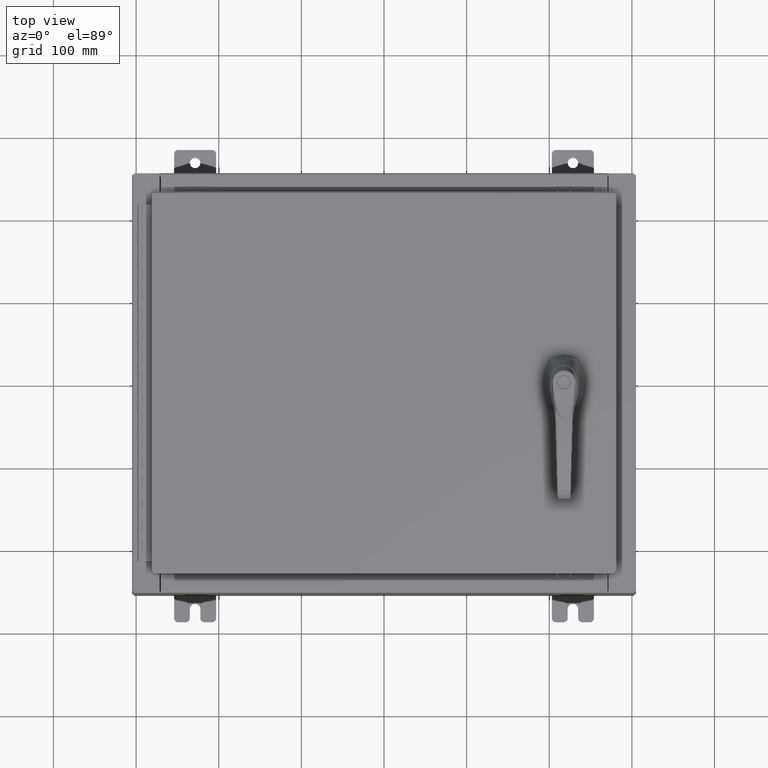
[diagram: clean part render]
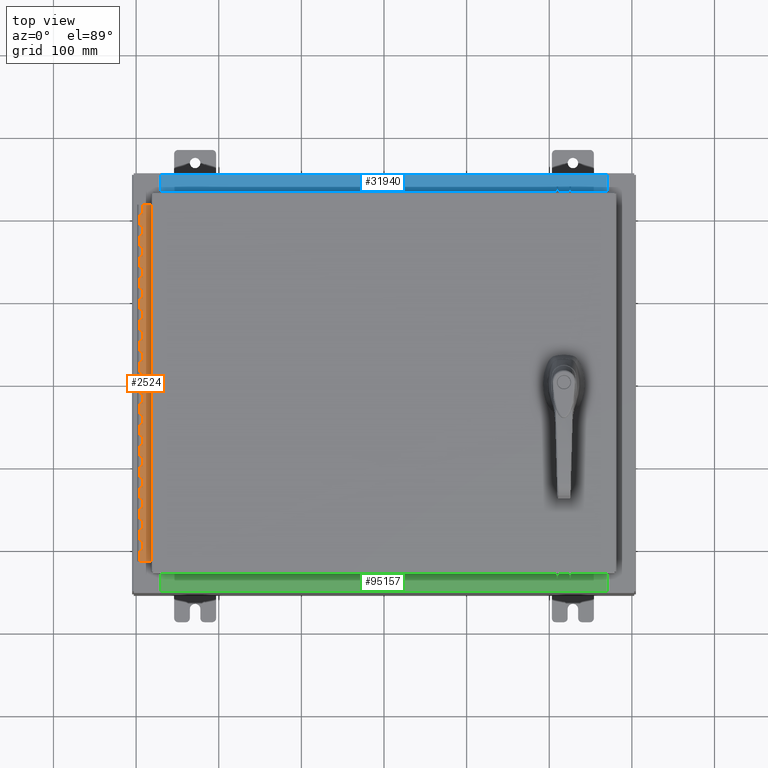
[diagram: same view with three faces highlighted in distinct colors, each labeled with its STEP entity id]
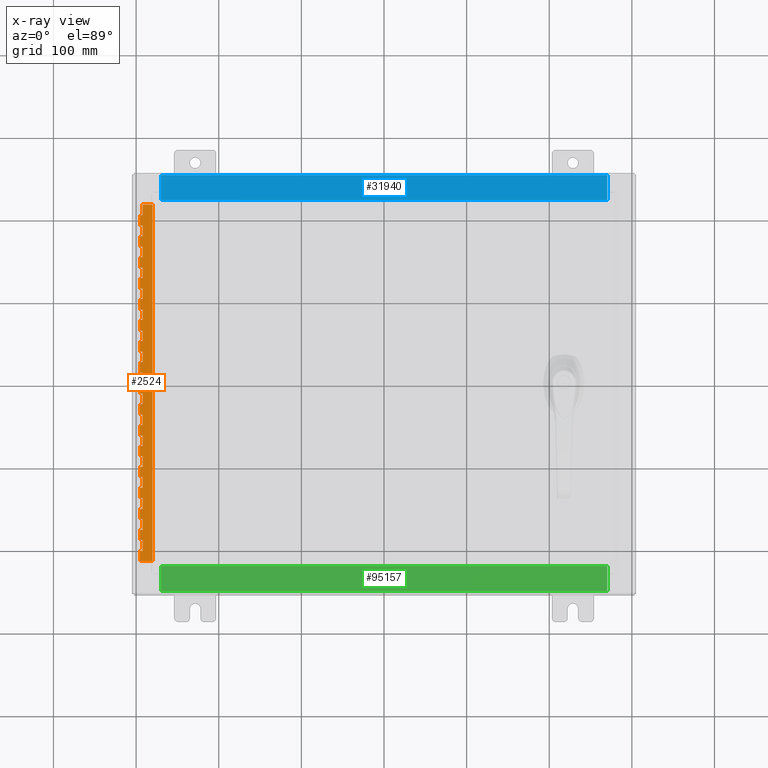
[diagram: x-ray of the same camera — body ghosted, the three highlighted faces saturated]
A machine part, top view with three faces highlighted in distinct colors.
The next image is the same camera in x-ray (body ghosted, the three faces saturated) — at least one of them is partly hidden behind the body in this view.
Their STEP definitions:

[orange] entity #2524 — the highlighted planar face has unit normal (-0, -0, 1).
#284 = CARTESIAN_POINT ( 'NONE',  ( -0.6869999999999973900, 0.8004999999999995500, -7.000000000000000000 ) ) ;
#498 = LINE ( 'NONE', #22245, #65911 ) ;
#546 = ORIENTED_EDGE ( 'NONE', *, *, #54917, .F. ) ;
#870 = CARTESIAN_POINT ( 'NONE',  ( -0.6869999999999978300, 0.6754999999999996600, -17.00000000000000000 ) ) ;
#1246 = LINE ( 'NONE', #86618, #43931 ) ;
#1321 = DIRECTION ( 'NONE',  ( 0.0000000000000000000, 0.0000000000000000000, 1.000000000000000000 ) ) ;
#1527 = DIRECTION ( 'NONE',  ( 0.0000000000000000000, 0.0000000000000000000, 1.000000000000000000 ) ) ;
#1585 = CARTESIAN_POINT ( 'NONE',  ( -0.6869999999999982800, 0.5504999999999997700, -17.00000000000000000 ) ) ;
#2031 = VERTEX_POINT ( 'NONE', #64534 ) ;
#2478 = DIRECTION ( 'NONE',  ( 3.389037039080723100E-015, 1.000000000000000000, -0.0000000000000000000 ) ) ;
#2524 = ADVANCED_FACE ( 'NONE', ( #32564 ), #66066, .T. ) ;
#2577 = CARTESIAN_POINT ( 'NONE',  ( -0.6869999999999978300, 0.6754999999999996600, -12.99999999999999800 ) ) ;
#2639 = DIRECTION ( 'NONE',  ( -3.389037039080723100E-015, -1.000000000000000000, 0.0000000000000000000 ) ) ;
#3063 = EDGE_CURVE ( 'NONE', #90924, #100637, #76605, .T. ) ;
#3087 = VERTEX_POINT ( 'NONE', #110539 ) ;
#3411 = CARTESIAN_POINT ( 'NONE',  ( -0.6869999999999978300, 0.6754999999999996600, -14.99999999999999800 ) ) ;
#3766 = CARTESIAN_POINT ( 'NONE',  ( -0.6869999999999978300, 0.6754999999999996600, -17.00000000000000000 ) ) ;
#4575 = EDGE_CURVE ( 'NONE', #64716, #60944, #104500, .T. ) ;
#4875 = EDGE_CURVE ( 'NONE', #31028, #3087, #91061, .T. ) ;
#5637 = CARTESIAN_POINT ( 'NONE',  ( -0.6869999999999982800, 0.5504999999999997700, -10.50000000000000000 ) ) ;
#5706 = VECTOR ( 'NONE', #20169, 39.37007874015748100 ) ;
#5715 = CARTESIAN_POINT ( 'NONE',  ( -0.6869999999999978300, 0.6754999999999996600, -2.000000000000000000 ) ) ;
#5811 = EDGE_CURVE ( 'NONE', #59144, #100218, #25542, .T. ) ;
#5843 = VECTOR ( 'NONE', #87970, 39.37007874015748100 ) ;
#5980 = VECTOR ( 'NONE', #45501, 39.37007874015748100 ) ;
#6234 = VECTOR ( 'NONE', #2639, 39.37007874015748100 ) ;
#6404 = ORIENTED_EDGE ( 'NONE', *, *, #69271, .F. ) ;
#7014 = VECTOR ( 'NONE', #98193, 39.37007874015748100 ) ;
#7224 = VERTEX_POINT ( 'NONE', #71356 ) ;
#7478 = ORIENTED_EDGE ( 'NONE', *, *, #101615, .T. ) ;
#7598 = VECTOR ( 'NONE', #71402, 39.37007874015748100 ) ;
#7881 = DIRECTION ( 'NONE',  ( -3.389037039080723100E-015, -1.000000000000000000, 0.0000000000000000000 ) ) ;
#7911 = ORIENTED_EDGE ( 'NONE', *, *, #3063, .F. ) ;
#7983 = DIRECTION ( 'NONE',  ( 0.0000000000000000000, 0.0000000000000000000, 1.000000000000000000 ) ) ;
#8280 = EDGE_CURVE ( 'NONE', #14008, #99402, #26010, .T. ) ;
#8390 = LINE ( 'NONE', #45176, #99166 ) ;
#8415 = CARTESIAN_POINT ( 'NONE',  ( -0.6869999999999978300, 0.6754999999999996600, -9.500000000000000000 ) ) ;
#8431 = ORIENTED_EDGE ( 'NONE', *, *, #93262, .F. ) ;
#8726 = VECTOR ( 'NONE', #92527, 39.37007874015748100 ) ;
#8801 = EDGE_CURVE ( 'NONE', #40274, #106467, #64667, .T. ) ;
#9131 = CARTESIAN_POINT ( 'NONE',  ( -0.6869999999999973900, 0.8004999999999995500, -1.000000000000000000 ) ) ;
#9201 = ORIENTED_EDGE ( 'NONE', *, *, #99450, .F. ) ;
#9321 = EDGE_LOOP ( 'NONE', ( #37622, #88770, #26826, #77031, #57630, #109897, #43639, #23465, #58233, #14764, #60257, #55494, #73386, #62964, #8431, #65921, #31475, #37415, #26973, #88961, #91506, #78088, #39977, #108208, #52017, #7911, #105583, #77947, #48440, #54123, #84235, #78348, #91535, #28633, #35236, #39868, #60059, #9201, #75867, #80062, #87143, #108471, #96715, #106892, #7478, #66048, #92813, #57005, #39771, #14476, #6404, #95392, #57336, #94314, #40145, #48506, #15956, #72763, #546, #67325, #53015, #37034, #15902, #40583, #69897, #31755, #68810, #17443, #71119, #58633 ) ) ;
#9443 = VERTEX_POINT ( 'NONE', #10812 ) ;
#9582 = DIRECTION ( 'NONE',  ( 0.0000000000000000000, -0.0000000000000000000, -1.000000000000000000 ) ) ;
#9709 = LINE ( 'NONE', #29886, #7014 ) ;
#10291 = LINE ( 'NONE', #11721, #7598 ) ;
#10423 = EDGE_CURVE ( 'NONE', #74917, #83559, #95182, .T. ) ;
#10757 = EDGE_CURVE ( 'NONE', #47083, #52236, #107187, .T. ) ;
#10812 = CARTESIAN_POINT ( 'NONE',  ( -0.6869999999999982800, 0.5504999999999997700, -8.000000000000000000 ) ) ;
#11611 = CARTESIAN_POINT ( 'NONE',  ( -0.6869999999999973900, 0.8004999999999995500, -14.49999999999999800 ) ) ;
#11721 = CARTESIAN_POINT ( 'NONE',  ( -0.6869999999999982800, 0.5504999999999997700, -16.50000000000000000 ) ) ;
#11731 = VECTOR ( 'NONE', #97242, 39.37007874015748100 ) ;
#11816 = LINE ( 'NONE', #43599, #54559 ) ;
#12062 = DIRECTION ( 'NONE',  ( 0.0000000000000000000, -0.0000000000000000000, -1.000000000000000000 ) ) ;
#12702 = DIRECTION ( 'NONE',  ( 0.0000000000000000000, 0.0000000000000000000, 1.000000000000000000 ) ) ;
#12830 = DIRECTION ( 'NONE',  ( 0.0000000000000000000, 0.0000000000000000000, 1.000000000000000000 ) ) ;
#13137 = CARTESIAN_POINT ( 'NONE',  ( -0.6869999999999998300, 0.07549999999999991400, 0.0000000000000000000 ) ) ;
#13443 = DIRECTION ( 'NONE',  ( 0.0000000000000000000, -0.0000000000000000000, -1.000000000000000000 ) ) ;
#13570 = CARTESIAN_POINT ( 'NONE',  ( -0.6869999999999978300, 0.6754999999999996600, -17.00000000000000000 ) ) ;
#14008 = VERTEX_POINT ( 'NONE', #76915 ) ;
#14476 = ORIENTED_EDGE ( 'NONE', *, *, #31100, .F. ) ;
#14649 = VECTOR ( 'NONE', #91552, 39.37007874015748100 ) ;
#14764 = ORIENTED_EDGE ( 'NONE', *, *, #82790, .F. ) ;
#15013 = VERTEX_POINT ( 'NONE', #13137 ) ;
#15029 = CARTESIAN_POINT ( 'NONE',  ( -0.6869999999999982800, 0.5504999999999997700, -11.50000000000000000 ) ) ;
#15267 = EDGE_CURVE ( 'NONE', #24563, #90847, #86623, .T. ) ;
#15677 = LINE ( 'NONE', #54011, #103852 ) ;
#15902 = ORIENTED_EDGE ( 'NONE', *, *, #105276, .F. ) ;
#15956 = ORIENTED_EDGE ( 'NONE', *, *, #84954, .T. ) ;
#16374 = CARTESIAN_POINT ( 'NONE',  ( -0.6869999999999978300, 0.6754999999999996600, -11.00000000000000000 ) ) ;
#16880 = CARTESIAN_POINT ( 'NONE',  ( -0.6869999999999998300, 0.07549999999999991400, -17.00000000000000000 ) ) ;
#17443 = ORIENTED_EDGE ( 'NONE', *, *, #30625, .F. ) ;
#17857 = VERTEX_POINT ( 'NONE', #22557 ) ;
#17963 = EDGE_CURVE ( 'NONE', #69334, #101191, #94376, .T. ) ;
#18452 = CARTESIAN_POINT ( 'NONE',  ( -0.6869999999999978300, 0.6754999999999996600, -1.000000000000000000 ) ) ;
#18760 = EDGE_CURVE ( 'NONE', #34272, #97777, #94272, .T. ) ;
#19133 = VECTOR ( 'NONE', #7983, 39.37007874015748100 ) ;
#19240 = VECTOR ( 'NONE', #29908, 39.37007874015748100 ) ;
#19371 = CARTESIAN_POINT ( 'NONE',  ( -0.6869999999999978300, 0.6754999999999996600, -17.00000000000000000 ) ) ;
#19391 = LINE ( 'NONE', #3766, #107561 ) ;
#19492 = LINE ( 'NONE', #19371, #42182 ) ;
#19675 = EDGE_CURVE ( 'NONE', #107667, #110322, #31334, .T. ) ;
#19880 = EDGE_CURVE ( 'NONE', #60738, #101191, #19492, .T. ) ;
#20130 = CARTESIAN_POINT ( 'NONE',  ( -0.6869999999999982800, 0.5504999999999997700, -13.50000000000000000 ) ) ;
#20140 = CARTESIAN_POINT ( 'NONE',  ( -0.6869999999999973900, 0.8004999999999995500, -2.500000000000000000 ) ) ;
#20169 = DIRECTION ( 'NONE',  ( -3.389037039080723100E-015, -1.000000000000000000, 0.0000000000000000000 ) ) ;
#20350 = EDGE_CURVE ( 'NONE', #39379, #69334, #48562, .T. ) ;
#20447 = DIRECTION ( 'NONE',  ( 3.389037039080723100E-015, 1.000000000000000000, -0.0000000000000000000 ) ) ;
#20907 = EDGE_CURVE ( 'NONE', #2031, #48356, #109985, .T. ) ;
#21074 = CARTESIAN_POINT ( 'NONE',  ( -0.6869999999999982800, 0.5504999999999997700, -1.499999999999999800 ) ) ;
#21781 = DIRECTION ( 'NONE',  ( 0.0000000000000000000, 0.0000000000000000000, 1.000000000000000000 ) ) ;
#21959 = LINE ( 'NONE', #90538, #67382 ) ;
#22245 = CARTESIAN_POINT ( 'NONE',  ( -0.6869999999999973900, 0.8004999999999995500, -15.50000000000000000 ) ) ;
#22340 = EDGE_CURVE ( 'NONE', #107667, #100637, #40264, .T. ) ;
#22557 = CARTESIAN_POINT ( 'NONE',  ( -0.6869999999999982800, 0.5504999999999997700, -16.50000000000000000 ) ) ;
#22832 = VECTOR ( 'NONE', #30534, 39.37007874015748100 ) ;
#22901 = LINE ( 'NONE', #284, #88348 ) ;
#23308 = VERTEX_POINT ( 'NONE', #108154 ) ;
#23444 = VECTOR ( 'NONE', #12062, 39.37007874015748100 ) ;
#23465 = ORIENTED_EDGE ( 'NONE', *, *, #69524, .F. ) ;
#23485 = DIRECTION ( 'NONE',  ( 3.369016658928398200E-015, 1.000000000000000000, 0.0000000000000000000 ) ) ;
#24563 = VERTEX_POINT ( 'NONE', #102438 ) ;
#24736 = VECTOR ( 'NONE', #2478, 39.37007874015748100 ) ;
#24891 = LINE ( 'NONE', #43552, #90317 ) ;
#25033 = CARTESIAN_POINT ( 'NONE',  ( -0.6869999999999973900, 0.8004999999999995500, -11.50000000000000000 ) ) ;
#25129 = CARTESIAN_POINT ( 'NONE',  ( -0.6869999999999973900, 0.8004999999999995500, -4.000000000000000000 ) ) ;
#25256 = EDGE_CURVE ( 'NONE', #95815, #77250, #88093, .T. ) ;
#25407 = EDGE_CURVE ( 'NONE', #110322, #59699, #80052, .T. ) ;
#25542 = LINE ( 'NONE', #107472, #22832 ) ;
#26010 = LINE ( 'NONE', #20140, #5980 ) ;
#26188 = LINE ( 'NONE', #28864, #23444 ) ;
#26399 = CARTESIAN_POINT ( 'NONE',  ( -0.6869999999999978300, 0.6754999999999996600, -0.5000000000000000000 ) ) ;
#26491 = CARTESIAN_POINT ( 'NONE',  ( -0.6869999999999973900, 0.8004999999999995500, -16.50000000000000000 ) ) ;
#26588 = CARTESIAN_POINT ( 'NONE',  ( -0.6869999999999982800, 0.5504999999999997700, -16.00000000000000000 ) ) ;
#26815 = VECTOR ( 'NONE', #50267, 39.37007874015748100 ) ;
#26826 = ORIENTED_EDGE ( 'NONE', *, *, #28653, .F. ) ;
#26910 = CARTESIAN_POINT ( 'NONE',  ( -0.6869999999999973900, 0.8004999999999995500, -3.500000000000000000 ) ) ;
#26946 = CARTESIAN_POINT ( 'NONE',  ( -0.6869999999999978300, 0.6754999999999996600, -1.499999999999999800 ) ) ;
#26973 = ORIENTED_EDGE ( 'NONE', *, *, #18760, .F. ) ;
#27244 = VECTOR ( 'NONE', #82916, 39.37007874015748100 ) ;
#27690 = VERTEX_POINT ( 'NONE', #100080 ) ;
#27881 = CARTESIAN_POINT ( 'NONE',  ( -0.6869999999999978300, 0.6754999999999996600, -6.000000000000000900 ) ) ;
#28531 = DIRECTION ( 'NONE',  ( 0.0000000000000000000, -0.0000000000000000000, -1.000000000000000000 ) ) ;
#28583 = CARTESIAN_POINT ( 'NONE',  ( -0.6869999999999973900, 0.8004999999999995500, -6.000000000000000900 ) ) ;
#28633 = ORIENTED_EDGE ( 'NONE', *, *, #34866, .F. ) ;
#28653 = EDGE_CURVE ( 'NONE', #17857, #60778, #10291, .T. ) ;
#28725 = DIRECTION ( 'NONE',  ( 0.0000000000000000000, -0.0000000000000000000, -1.000000000000000000 ) ) ;
#28788 = VECTOR ( 'NONE', #28531, 39.37007874015748100 ) ;
#28846 = VECTOR ( 'NONE', #54300, 39.37007874015748100 ) ;
#28864 = CARTESIAN_POINT ( 'NONE',  ( -0.6869999999999982800, 0.5504999999999997700, -2.500000000000000000 ) ) ;
#28895 = VECTOR ( 'NONE', #60285, 39.37007874015748100 ) ;
#28917 = VECTOR ( 'NONE', #20447, 39.37007874015748100 ) ;
#29032 = DIRECTION ( 'NONE',  ( 0.0000000000000000000, 0.0000000000000000000, 1.000000000000000000 ) ) ;
#29054 = LINE ( 'NONE', #28583, #11731 ) ;
#29224 = EDGE_CURVE ( 'NONE', #45716, #40274, #68971, .T. ) ;
#29886 = CARTESIAN_POINT ( 'NONE',  ( -0.6870000000000022800, -0.6245000000000003900, 0.0000000000000000000 ) ) ;
#29908 = DIRECTION ( 'NONE',  ( 0.0000000000000000000, -0.0000000000000000000, -1.000000000000000000 ) ) ;
#30202 = VERTEX_POINT ( 'NONE', #5637 ) ;
#30314 = LINE ( 'NONE', #107116, #98428 ) ;
#30534 = DIRECTION ( 'NONE',  ( -3.389037039080723100E-015, -1.000000000000000000, 0.0000000000000000000 ) ) ;
#30625 = EDGE_CURVE ( 'NONE', #91668, #39379, #48931, .T. ) ;
#30672 = VERTEX_POINT ( 'NONE', #62713 ) ;
#30812 = CARTESIAN_POINT ( 'NONE',  ( -0.6869999999999978300, 0.6754999999999996600, 0.0000000000000000000 ) ) ;
#30893 = CARTESIAN_POINT ( 'NONE',  ( -0.6869999999999982800, 0.5504999999999997700, -9.000000000000000000 ) ) ;
#31028 = VERTEX_POINT ( 'NONE', #108078 ) ;
#31100 = EDGE_CURVE ( 'NONE', #76808, #105462, #98300, .T. ) ;
#31173 = VECTOR ( 'NONE', #33229, 39.37007874015748100 ) ;
#31331 = VECTOR ( 'NONE', #1527, 39.37007874015748100 ) ;
#31334 = LINE ( 'NONE', #25033, #96806 ) ;
#31376 = LINE ( 'NONE', #66775, #8726 ) ;
#31475 = ORIENTED_EDGE ( 'NONE', *, *, #73799, .T. ) ;
#31755 = ORIENTED_EDGE ( 'NONE', *, *, #17963, .F. ) ;
#32364 = CARTESIAN_POINT ( 'NONE',  ( -0.6869999999999978300, 0.6754999999999996600, -13.50000000000000000 ) ) ;
#32564 = FACE_OUTER_BOUND ( 'NONE', #9321, .T. ) ;
#32840 = DIRECTION ( 'NONE',  ( 3.389037039080723100E-015, 1.000000000000000000, -0.0000000000000000000 ) ) ;
#32865 = LINE ( 'NONE', #66845, #61011 ) ;
#33229 = DIRECTION ( 'NONE',  ( 3.389037039080723100E-015, 1.000000000000000000, -0.0000000000000000000 ) ) ;
#33503 = CARTESIAN_POINT ( 'NONE',  ( -0.6869999999999982800, 0.5504999999999997700, -2.500000000000000000 ) ) ;
#33802 = CARTESIAN_POINT ( 'NONE',  ( -0.6869999999999982800, 0.5504999999999997700, -13.50000000000000000 ) ) ;
#34136 = VERTEX_POINT ( 'NONE', #43201 ) ;
#34272 = VERTEX_POINT ( 'NONE', #65473 ) ;
#34286 = DIRECTION ( 'NONE',  ( 0.0000000000000000000, -0.0000000000000000000, -1.000000000000000000 ) ) ;
#34391 = CARTESIAN_POINT ( 'NONE',  ( -0.6869999999999973900, 0.8004999999999995500, -1.499999999999999800 ) ) ;
#34866 = EDGE_CURVE ( 'NONE', #79392, #89970, #90160, .T. ) ;
#34983 = CARTESIAN_POINT ( 'NONE',  ( -0.6869999999999978300, 0.6754999999999996600, -16.50000000000000000 ) ) ;
#35096 = EDGE_CURVE ( 'NONE', #103940, #89970, #54087, .T. ) ;
#35236 = ORIENTED_EDGE ( 'NONE', *, *, #101852, .F. ) ;
#36344 = VECTOR ( 'NONE', #98923, 39.37007874015748100 ) ;
#36586 = DIRECTION ( 'NONE',  ( 0.0000000000000000000, -0.0000000000000000000, -1.000000000000000000 ) ) ;
#36607 = LINE ( 'NONE', #34391, #59405 ) ;
#36635 = DIRECTION ( 'NONE',  ( 0.0000000000000000000, 0.0000000000000000000, 1.000000000000000000 ) ) ;
#36641 = VECTOR ( 'NONE', #49322, 39.37007874015748100 ) ;
#36801 = VERTEX_POINT ( 'NONE', #92065 ) ;
#37034 = ORIENTED_EDGE ( 'NONE', *, *, #102332, .F. ) ;
#37080 = CARTESIAN_POINT ( 'NONE',  ( -0.6869999999999978300, 0.6754999999999996600, -17.00000000000000000 ) ) ;
#37167 = EDGE_CURVE ( 'NONE', #41734, #52499, #91227, .T. ) ;
#37182 = CARTESIAN_POINT ( 'NONE',  ( -0.6869999999999982800, 0.5504999999999997700, -8.500000000000000000 ) ) ;
#37415 = ORIENTED_EDGE ( 'NONE', *, *, #80478, .F. ) ;
#37622 = ORIENTED_EDGE ( 'NONE', *, *, #56858, .F. ) ;
#38345 = VECTOR ( 'NONE', #48538, 39.37007874015748100 ) ;
#39291 = LINE ( 'NONE', #100085, #84730 ) ;
#39374 = DIRECTION ( 'NONE',  ( -3.389037039080723100E-015, -1.000000000000000000, 0.0000000000000000000 ) ) ;
#39379 = VERTEX_POINT ( 'NONE', #87589 ) ;
#39403 = CARTESIAN_POINT ( 'NONE',  ( -0.6869999999999978300, 0.6754999999999996600, -16.00000000000000000 ) ) ;
#39771 = ORIENTED_EDGE ( 'NONE', *, *, #55720, .T. ) ;
#39868 = ORIENTED_EDGE ( 'NONE', *, *, #77294, .F. ) ;
#39894 = VECTOR ( 'NONE', #104773, 39.37007874015748100 ) ;
#39914 = CARTESIAN_POINT ( 'NONE',  ( -0.6869999999999978300, 0.6754999999999996600, -17.00000000000000000 ) ) ;
#39977 = ORIENTED_EDGE ( 'NONE', *, *, #25407, .F. ) ;
#40145 = ORIENTED_EDGE ( 'NONE', *, *, #8801, .F. ) ;
#40264 = LINE ( 'NONE', #54592, #65724 ) ;
#40274 = VERTEX_POINT ( 'NONE', #66691 ) ;
#40567 = VERTEX_POINT ( 'NONE', #106245 ) ;
#40583 = ORIENTED_EDGE ( 'NONE', *, *, #88542, .F. ) ;
#40684 = CARTESIAN_POINT ( 'NONE',  ( -0.6869999999999978300, 0.6754999999999996600, -17.00000000000000000 ) ) ;
#41167 = VECTOR ( 'NONE', #32840, 39.37007874015748100 ) ;
#41734 = VERTEX_POINT ( 'NONE', #79072 ) ;
#41777 = CARTESIAN_POINT ( 'NONE',  ( -0.6869999999999973900, 0.8004999999999995500, -2.999999999999999600 ) ) ;
#42182 = VECTOR ( 'NONE', #70483, 39.37007874015748100 ) ;
#42595 = DIRECTION ( 'NONE',  ( -3.389037039080723100E-015, -1.000000000000000000, 0.0000000000000000000 ) ) ;
#42602 = CARTESIAN_POINT ( 'NONE',  ( -0.6869999999999982800, 0.5504999999999997700, -6.000000000000000900 ) ) ;
#43133 = VECTOR ( 'NONE', #46050, 39.37007874015748100 ) ;
#43156 = LINE ( 'NONE', #54566, #80504 ) ;
#43201 = CARTESIAN_POINT ( 'NONE',  ( -0.6869999999999982800, 0.5504999999999997700, -15.50000000000000000 ) ) ;
#43279 = LINE ( 'NONE', #92916, #65997 ) ;
#43491 = LINE ( 'NONE', #65424, #91601 ) ;
#43552 = CARTESIAN_POINT ( 'NONE',  ( -0.6869999999999973900, 0.8004999999999995500, -8.000000000000000000 ) ) ;
#43599 = CARTESIAN_POINT ( 'NONE',  ( -0.6869999999999982800, 0.5504999999999997700, -5.500000000000000000 ) ) ;
#43639 = ORIENTED_EDGE ( 'NONE', *, *, #86256, .F. ) ;
#43801 = CARTESIAN_POINT ( 'NONE',  ( -0.6869999999999978300, 0.6754999999999996600, -6.499999999999999100 ) ) ;
#43931 = VECTOR ( 'NONE', #103833, 39.37007874015748100 ) ;
#43938 = LINE ( 'NONE', #26491, #66659 ) ;
#44041 = DIRECTION ( 'NONE',  ( -3.389037039080723100E-015, -1.000000000000000000, 0.0000000000000000000 ) ) ;
#44614 = DIRECTION ( 'NONE',  ( -3.389037039080723100E-015, -1.000000000000000000, 0.0000000000000000000 ) ) ;
#44835 = VERTEX_POINT ( 'NONE', #2577 ) ;
#44886 = EDGE_CURVE ( 'NONE', #30672, #60944, #57041, .T. ) ;
#45176 = CARTESIAN_POINT ( 'NONE',  ( -0.6869999999999982800, 0.5504999999999997700, -10.50000000000000000 ) ) ;
#45350 = CARTESIAN_POINT ( 'NONE',  ( -0.6869999999999982800, 0.5504999999999997700, -6.499999999999999100 ) ) ;
#45501 = DIRECTION ( 'NONE',  ( -3.389037039080723100E-015, -1.000000000000000000, 0.0000000000000000000 ) ) ;
#45716 = VERTEX_POINT ( 'NONE', #78467 ) ;
#46050 = DIRECTION ( 'NONE',  ( 0.0000000000000000000, -0.0000000000000000000, -1.000000000000000000 ) ) ;
#46701 = CARTESIAN_POINT ( 'NONE',  ( -0.6869999999999982800, 0.5504999999999997700, -3.500000000000000000 ) ) ;
#47083 = VERTEX_POINT ( 'NONE', #32364 ) ;
#48210 = LINE ( 'NONE', #25129, #68260 ) ;
#48356 = VERTEX_POINT ( 'NONE', #110221 ) ;
#48440 = ORIENTED_EDGE ( 'NONE', *, *, #4575, .T. ) ;
#48506 = ORIENTED_EDGE ( 'NONE', *, *, #29224, .F. ) ;
#48538 = DIRECTION ( 'NONE',  ( 0.0000000000000000000, 0.0000000000000000000, 1.000000000000000000 ) ) ;
#48562 = LINE ( 'NONE', #60373, #68625 ) ;
#48931 = LINE ( 'NONE', #104919, #6234 ) ;
#48952 = DIRECTION ( 'NONE',  ( 3.389037039080723100E-015, 1.000000000000000000, -0.0000000000000000000 ) ) ;
#49322 = DIRECTION ( 'NONE',  ( 0.0000000000000000000, 0.0000000000000000000, 1.000000000000000000 ) ) ;
#49434 = DIRECTION ( 'NONE',  ( 3.389037039080723100E-015, 1.000000000000000000, -0.0000000000000000000 ) ) ;
#49602 = CARTESIAN_POINT ( 'NONE',  ( -0.6869999999999978300, 0.6754999999999996600, -17.00000000000000000 ) ) ;
#49750 = VECTOR ( 'NONE', #103518, 39.37007874015748100 ) ;
#49946 = LINE ( 'NONE', #74377, #27244 ) ;
#50234 = VECTOR ( 'NONE', #49434, 39.37007874015748100 ) ;
#50267 = DIRECTION ( 'NONE',  ( 0.0000000000000000000, -0.0000000000000000000, -1.000000000000000000 ) ) ;
#50368 = DIRECTION ( 'NONE',  ( 0.0000000000000000000, 0.0000000000000000000, 1.000000000000000000 ) ) ;
#50699 = LINE ( 'NONE', #86384, #68054 ) ;
#51070 = EDGE_CURVE ( 'NONE', #95815, #34272, #65343, .T. ) ;
#51087 = EDGE_CURVE ( 'NONE', #103240, #83066, #108102, .T. ) ;
#51099 = LINE ( 'NONE', #79861, #5706 ) ;
#51888 = LINE ( 'NONE', #75175, #94642 ) ;
#51920 = VERTEX_POINT ( 'NONE', #39403 ) ;
#52017 = ORIENTED_EDGE ( 'NONE', *, *, #22340, .T. ) ;
#52101 = CARTESIAN_POINT ( 'NONE',  ( -0.6869999999999978300, 0.6754999999999996600, -10.50000000000000000 ) ) ;
#52236 = VERTEX_POINT ( 'NONE', #33802 ) ;
#52499 = VERTEX_POINT ( 'NONE', #91559 ) ;
#52848 = DIRECTION ( 'NONE',  ( 0.0000000000000000000, -0.0000000000000000000, -1.000000000000000000 ) ) ;
#52906 = CARTESIAN_POINT ( 'NONE',  ( -0.6869999999999982800, 0.5504999999999997700, -2.000000000000000000 ) ) ;
#53015 = ORIENTED_EDGE ( 'NONE', *, *, #99858, .T. ) ;
#53591 = CARTESIAN_POINT ( 'NONE',  ( -0.6869999999999973900, 0.8004999999999995500, -9.000000000000000000 ) ) ;
#53729 = EDGE_CURVE ( 'NONE', #23308, #40567, #30314, .T. ) ;
#54011 = CARTESIAN_POINT ( 'NONE',  ( -0.6869999999999973900, 0.8004999999999995500, -9.500000000000000000 ) ) ;
#54074 = VERTEX_POINT ( 'NONE', #34983 ) ;
#54087 = LINE ( 'NONE', #95183, #31331 ) ;
#54123 = ORIENTED_EDGE ( 'NONE', *, *, #44886, .F. ) ;
#54300 = DIRECTION ( 'NONE',  ( 0.0000000000000000000, 0.0000000000000000000, 1.000000000000000000 ) ) ;
#54498 = CARTESIAN_POINT ( 'NONE',  ( -0.6869999999999982800, 0.5504999999999997700, -12.99999999999999800 ) ) ;
#54559 = VECTOR ( 'NONE', #103374, 39.37007874015748100 ) ;
#54566 = CARTESIAN_POINT ( 'NONE',  ( -0.6869999999999973900, 0.8004999999999995500, -10.50000000000000000 ) ) ;
#54592 = CARTESIAN_POINT ( 'NONE',  ( -0.6869999999999978300, 0.6754999999999996600, -17.00000000000000000 ) ) ;
#54691 = CARTESIAN_POINT ( 'NONE',  ( -0.6869999999999982800, 0.5504999999999997700, -14.49999999999999800 ) ) ;
#54917 = EDGE_CURVE ( 'NONE', #99402, #24563, #26188, .T. ) ;
#55494 = ORIENTED_EDGE ( 'NONE', *, *, #69118, .F. ) ;
#55720 = EDGE_CURVE ( 'NONE', #59144, #105462, #59534, .T. ) ;
#55745 = EDGE_CURVE ( 'NONE', #59699, #77250, #31376, .T. ) ;
#56025 = DIRECTION ( 'NONE',  ( 0.0000000000000000000, 0.0000000000000000000, 1.000000000000000000 ) ) ;
#56408 = VERTEX_POINT ( 'NONE', #30812 ) ;
#56418 = LINE ( 'NONE', #97325, #93776 ) ;
#56431 = CARTESIAN_POINT ( 'NONE',  ( -0.6869999999999978300, 0.6754999999999996600, -5.500000000000000000 ) ) ;
#56858 = EDGE_CURVE ( 'NONE', #98972, #15013, #43279, .T. ) ;
#57005 = ORIENTED_EDGE ( 'NONE', *, *, #5811, .F. ) ;
#57041 = LINE ( 'NONE', #71570, #28917 ) ;
#57336 = ORIENTED_EDGE ( 'NONE', *, *, #89648, .T. ) ;
#57492 = VERTEX_POINT ( 'NONE', #88643 ) ;
#57630 = ORIENTED_EDGE ( 'NONE', *, *, #71181, .T. ) ;
#58233 = ORIENTED_EDGE ( 'NONE', *, *, #82268, .T. ) ;
#58633 = ORIENTED_EDGE ( 'NONE', *, *, #70690, .F. ) ;
#58876 = LINE ( 'NONE', #20130, #78813 ) ;
#59006 = VECTOR ( 'NONE', #52848, 39.37007874015748100 ) ;
#59144 = VERTEX_POINT ( 'NONE', #56431 ) ;
#59334 = VECTOR ( 'NONE', #34286, 39.37007874015748100 ) ;
#59405 = VECTOR ( 'NONE', #42595, 39.37007874015748100 ) ;
#59534 = LINE ( 'NONE', #49602, #99505 ) ;
#59699 = VERTEX_POINT ( 'NONE', #98797 ) ;
#60059 = ORIENTED_EDGE ( 'NONE', *, *, #10423, .T. ) ;
#60257 = ORIENTED_EDGE ( 'NONE', *, *, #37167, .F. ) ;
#60285 = DIRECTION ( 'NONE',  ( 3.389037039080723100E-015, 1.000000000000000000, -0.0000000000000000000 ) ) ;
#60373 = CARTESIAN_POINT ( 'NONE',  ( -0.6869999999999982800, 0.5504999999999997700, -0.5000000000000000000 ) ) ;
#60738 = VERTEX_POINT ( 'NONE', #26946 ) ;
#60778 = VERTEX_POINT ( 'NONE', #1585 ) ;
#60944 = VERTEX_POINT ( 'NONE', #102992 ) ;
#61011 = VECTOR ( 'NONE', #75409, 39.37007874015748100 ) ;
#61448 = EDGE_CURVE ( 'NONE', #36801, #30672, #89553, .T. ) ;
#61848 = CARTESIAN_POINT ( 'NONE',  ( -0.6869999999999973900, 0.8004999999999995500, -12.49999999999999800 ) ) ;
#62713 = CARTESIAN_POINT ( 'NONE',  ( -0.6869999999999982800, 0.5504999999999997700, -10.00000000000000000 ) ) ;
#62964 = ORIENTED_EDGE ( 'NONE', *, *, #101517, .F. ) ;
#63127 = CARTESIAN_POINT ( 'NONE',  ( -0.6869999999999978300, 0.6754999999999996600, -9.000000000000000000 ) ) ;
#64221 = DIRECTION ( 'NONE',  ( -3.389037039080723100E-015, -1.000000000000000000, 0.0000000000000000000 ) ) ;
#64534 = CARTESIAN_POINT ( 'NONE',  ( -0.6869999999999978300, 0.6754999999999996600, -14.49999999999999800 ) ) ;
#64667 = LINE ( 'NONE', #46701, #19240 ) ;
#64716 = VERTEX_POINT ( 'NONE', #52101 ) ;
#64993 = EDGE_CURVE ( 'NONE', #103940, #36801, #15677, .T. ) ;
#65343 = LINE ( 'NONE', #61848, #39894 ) ;
#65424 = CARTESIAN_POINT ( 'NONE',  ( -0.6869999999999978300, 0.6754999999999996600, -17.00000000000000000 ) ) ;
#65473 = CARTESIAN_POINT ( 'NONE',  ( -0.6869999999999982800, 0.5504999999999997700, -12.49999999999999800 ) ) ;
#65724 = VECTOR ( 'NONE', #36635, 39.37007874015748100 ) ;
#65911 = VECTOR ( 'NONE', #39374, 39.37007874015748100 ) ;
#65921 = ORIENTED_EDGE ( 'NONE', *, *, #10757, .F. ) ;
#65997 = VECTOR ( 'NONE', #50368, 39.37007874015748100 ) ;
#66048 = ORIENTED_EDGE ( 'NONE', *, *, #98198, .F. ) ;
#66066 = PLANE ( 'NONE',  #100650 ) ;
#66659 = VECTOR ( 'NONE', #69026, 39.37007874015748100 ) ;
#66691 = CARTESIAN_POINT ( 'NONE',  ( -0.6869999999999982800, 0.5504999999999997700, -3.500000000000000000 ) ) ;
#66775 = CARTESIAN_POINT ( 'NONE',  ( -0.6869999999999973900, 0.8004999999999995500, -11.99999999999999800 ) ) ;
#66845 = CARTESIAN_POINT ( 'NONE',  ( -0.6869999999999982800, 0.5504999999999997700, -15.50000000000000000 ) ) ;
#67074 = VECTOR ( 'NONE', #106658, 39.37007874015748100 ) ;
#67293 = LINE ( 'NONE', #11611, #90000 ) ;
#67325 = ORIENTED_EDGE ( 'NONE', *, *, #8280, .F. ) ;
#67382 = VECTOR ( 'NONE', #73709, 39.37007874015748100 ) ;
#67548 = CARTESIAN_POINT ( 'NONE',  ( -0.6869999999999978300, 0.6754999999999996600, -11.50000000000000000 ) ) ;
#68054 = VECTOR ( 'NONE', #1321, 39.37007874015748100 ) ;
#68260 = VECTOR ( 'NONE', #93420, 39.37007874015748100 ) ;
#68375 = VECTOR ( 'NONE', #44614, 39.37007874015748100 ) ;
#68625 = VECTOR ( 'NONE', #9582, 39.37007874015748100 ) ;
#68810 = ORIENTED_EDGE ( 'NONE', *, *, #20350, .F. ) ;
#68971 = LINE ( 'NONE', #26910, #109045 ) ;
#69026 = DIRECTION ( 'NONE',  ( -3.389037039080723100E-015, -1.000000000000000000, 0.0000000000000000000 ) ) ;
#69118 = EDGE_CURVE ( 'NONE', #2031, #41734, #67293, .T. ) ;
#69146 = DIRECTION ( 'NONE',  ( 0.0000000000000000000, 0.0000000000000000000, 1.000000000000000000 ) ) ;
#69271 = EDGE_CURVE ( 'NONE', #3087, #76808, #81929, .T. ) ;
#69334 = VERTEX_POINT ( 'NONE', #78647 ) ;
#69428 = EDGE_CURVE ( 'NONE', #57492, #9443, #71238, .T. ) ;
#69524 = EDGE_CURVE ( 'NONE', #7224, #34136, #498, .T. ) ;
#69897 = ORIENTED_EDGE ( 'NONE', *, *, #19880, .T. ) ;
#70333 = CARTESIAN_POINT ( 'NONE',  ( -0.6869999999999978300, 0.6754999999999996600, -2.999999999999999600 ) ) ;
#70483 = DIRECTION ( 'NONE',  ( 0.0000000000000000000, 0.0000000000000000000, 1.000000000000000000 ) ) ;
#70690 = EDGE_CURVE ( 'NONE', #15013, #56408, #9709, .T. ) ;
#70745 = VECTOR ( 'NONE', #21781, 39.37007874015748100 ) ;
#71119 = ORIENTED_EDGE ( 'NONE', *, *, #99770, .T. ) ;
#71181 = EDGE_CURVE ( 'NONE', #54074, #51920, #56418, .T. ) ;
#71238 = LINE ( 'NONE', #96197, #5843 ) ;
#71342 = VECTOR ( 'NONE', #13443, 39.37007874015748100 ) ;
#71356 = CARTESIAN_POINT ( 'NONE',  ( -0.6869999999999978300, 0.6754999999999996600, -15.50000000000000000 ) ) ;
#71402 = DIRECTION ( 'NONE',  ( 0.0000000000000000000, -0.0000000000000000000, -1.000000000000000000 ) ) ;
#71570 = CARTESIAN_POINT ( 'NONE',  ( -0.6869999999999973900, 0.8004999999999995500, -10.00000000000000000 ) ) ;
#71690 = DIRECTION ( 'NONE',  ( -3.389037039080723100E-015, -1.000000000000000000, 0.0000000000000000000 ) ) ;
#71784 = VECTOR ( 'NONE', #89264, 39.37007874015748100 ) ;
#72763 = ORIENTED_EDGE ( 'NONE', *, *, #15267, .F. ) ;
#73131 = CARTESIAN_POINT ( 'NONE',  ( -0.6869999999999982800, 0.5504999999999997700, -8.500000000000000000 ) ) ;
#73386 = ORIENTED_EDGE ( 'NONE', *, *, #20907, .T. ) ;
#73709 = DIRECTION ( 'NONE',  ( -3.389037039080723100E-015, -1.000000000000000000, 0.0000000000000000000 ) ) ;
#73799 = EDGE_CURVE ( 'NONE', #47083, #44835, #19391, .T. ) ;
#73872 = VECTOR ( 'NONE', #69146, 39.37007874015748100 ) ;
#74021 = LINE ( 'NONE', #104215, #99407 ) ;
#74242 = LINE ( 'NONE', #37080, #28846 ) ;
#74377 = CARTESIAN_POINT ( 'NONE',  ( -0.6869999999999973900, 0.8004999999999995500, -2.000000000000000000 ) ) ;
#74640 = DIRECTION ( 'NONE',  ( 1.000000000000000000, -3.369016658928398200E-015, 0.0000000000000000000 ) ) ;
#74681 = EDGE_CURVE ( 'NONE', #23308, #57492, #21959, .T. ) ;
#74917 = VERTEX_POINT ( 'NONE', #92373 ) ;
#75175 = CARTESIAN_POINT ( 'NONE',  ( -0.6869999999999973900, 0.8004999999999995500, -16.00000000000000000 ) ) ;
#75409 = DIRECTION ( 'NONE',  ( 0.0000000000000000000, -0.0000000000000000000, -1.000000000000000000 ) ) ;
#75418 = CARTESIAN_POINT ( 'NONE',  ( -0.6869999999999978300, 0.6754999999999996600, -11.99999999999999800 ) ) ;
#75867 = ORIENTED_EDGE ( 'NONE', *, *, #69428, .F. ) ;
#76576 = LINE ( 'NONE', #870, #73872 ) ;
#76605 = LINE ( 'NONE', #92964, #31173 ) ;
#76808 = VERTEX_POINT ( 'NONE', #83011 ) ;
#76915 = CARTESIAN_POINT ( 'NONE',  ( -0.6869999999999978300, 0.6754999999999996600, -2.500000000000000000 ) ) ;
#77031 = ORIENTED_EDGE ( 'NONE', *, *, #107845, .F. ) ;
#77250 = VERTEX_POINT ( 'NONE', #75418 ) ;
#77261 = EDGE_CURVE ( 'NONE', #30202, #90924, #8390, .T. ) ;
#77294 = EDGE_CURVE ( 'NONE', #74917, #100784, #51099, .T. ) ;
#77331 = VERTEX_POINT ( 'NONE', #3411 ) ;
#77947 = ORIENTED_EDGE ( 'NONE', *, *, #89973, .F. ) ;
#78088 = ORIENTED_EDGE ( 'NONE', *, *, #55745, .F. ) ;
#78313 = CARTESIAN_POINT ( 'NONE',  ( -0.6869999999999978300, 0.6754999999999996600, -12.49999999999999800 ) ) ;
#78348 = ORIENTED_EDGE ( 'NONE', *, *, #64993, .F. ) ;
#78467 = CARTESIAN_POINT ( 'NONE',  ( -0.6869999999999978300, 0.6754999999999996600, -3.500000000000000000 ) ) ;
#78647 = CARTESIAN_POINT ( 'NONE',  ( -0.6869999999999982800, 0.5504999999999997700, -1.000000000000000000 ) ) ;
#78813 = VECTOR ( 'NONE', #28725, 39.37007874015748100 ) ;
#78944 = LINE ( 'NONE', #21074, #59006 ) ;
#79072 = CARTESIAN_POINT ( 'NONE',  ( -0.6869999999999982800, 0.5504999999999997700, -14.49999999999999800 ) ) ;
#79392 = VERTEX_POINT ( 'NONE', #30893 ) ;
#79861 = CARTESIAN_POINT ( 'NONE',  ( -0.6869999999999973900, 0.8004999999999995500, -8.500000000000000000 ) ) ;
#80052 = LINE ( 'NONE', #15029, #14649 ) ;
#80062 = ORIENTED_EDGE ( 'NONE', *, *, #74681, .F. ) ;
#80478 = EDGE_CURVE ( 'NONE', #97777, #44835, #93657, .T. ) ;
#80504 = VECTOR ( 'NONE', #71690, 39.37007874015748100 ) ;
#80663 = CARTESIAN_POINT ( 'NONE',  ( -0.6870000000000022800, -0.6245000000000003900, -17.00000000000000000 ) ) ;
#81351 = VERTEX_POINT ( 'NONE', #27881 ) ;
#81548 = VERTEX_POINT ( 'NONE', #98004 ) ;
#81929 = LINE ( 'NONE', #94755, #59334 ) ;
#82023 = LINE ( 'NONE', #40684, #36641 ) ;
#82268 = EDGE_CURVE ( 'NONE', #7224, #77331, #50699, .T. ) ;
#82790 = EDGE_CURVE ( 'NONE', #52499, #77331, #1246, .T. ) ;
#82916 = DIRECTION ( 'NONE',  ( 3.389037039080723100E-015, 1.000000000000000000, -0.0000000000000000000 ) ) ;
#83011 = CARTESIAN_POINT ( 'NONE',  ( -0.6869999999999982800, 0.5504999999999997700, -5.000000000000000000 ) ) ;
#83066 = VERTEX_POINT ( 'NONE', #98125 ) ;
#83559 = VERTEX_POINT ( 'NONE', #96900 ) ;
#83750 = EDGE_CURVE ( 'NONE', #91410, #51920, #51888, .T. ) ;
#83752 = DIRECTION ( 'NONE',  ( 3.389037039080723100E-015, 1.000000000000000000, -0.0000000000000000000 ) ) ;
#83764 = LINE ( 'NONE', #39914, #38345 ) ;
#84235 = ORIENTED_EDGE ( 'NONE', *, *, #61448, .F. ) ;
#84730 = VECTOR ( 'NONE', #48952, 39.37007874015748100 ) ;
#84755 = EDGE_CURVE ( 'NONE', #98972, #60778, #94538, .T. ) ;
#84954 = EDGE_CURVE ( 'NONE', #45716, #90847, #83764, .T. ) ;
#85018 = CARTESIAN_POINT ( 'NONE',  ( -0.6869999999999982800, 0.5504999999999997700, -4.000000000000000000 ) ) ;
#85522 = CARTESIAN_POINT ( 'NONE',  ( -0.6869999999999982800, 0.5504999999999997700, -5.500000000000000000 ) ) ;
#85710 = DIRECTION ( 'NONE',  ( 3.389037039080723100E-015, 1.000000000000000000, -0.0000000000000000000 ) ) ;
#86256 = EDGE_CURVE ( 'NONE', #34136, #91410, #32865, .T. ) ;
#86384 = CARTESIAN_POINT ( 'NONE',  ( -0.6869999999999978300, 0.6754999999999996600, -17.00000000000000000 ) ) ;
#86618 = CARTESIAN_POINT ( 'NONE',  ( -0.6869999999999973900, 0.8004999999999995500, -14.99999999999999800 ) ) ;
#86623 = LINE ( 'NONE', #41777, #41167 ) ;
#87143 = ORIENTED_EDGE ( 'NONE', *, *, #53729, .T. ) ;
#87319 = CARTESIAN_POINT ( 'NONE',  ( -0.6869999999999978300, 0.6754999999999996600, -4.000000000000000000 ) ) ;
#87589 = CARTESIAN_POINT ( 'NONE',  ( -0.6869999999999982800, 0.5504999999999997700, -0.5000000000000000000 ) ) ;
#87970 = DIRECTION ( 'NONE',  ( 0.0000000000000000000, -0.0000000000000000000, -1.000000000000000000 ) ) ;
#88093 = LINE ( 'NONE', #13570, #70745 ) ;
#88242 = CARTESIAN_POINT ( 'NONE',  ( -0.6869999999999982800, 0.5504999999999997700, -12.49999999999999800 ) ) ;
#88302 = VERTEX_POINT ( 'NONE', #5715 ) ;
#88348 = VECTOR ( 'NONE', #85710, 39.37007874015748100 ) ;
#88542 = EDGE_CURVE ( 'NONE', #60738, #81548, #36607, .T. ) ;
#88643 = CARTESIAN_POINT ( 'NONE',  ( -0.6869999999999982800, 0.5504999999999997700, -7.499999999999999100 ) ) ;
#88770 = ORIENTED_EDGE ( 'NONE', *, *, #84755, .T. ) ;
#88961 = ORIENTED_EDGE ( 'NONE', *, *, #51070, .F. ) ;
#89264 = DIRECTION ( 'NONE',  ( 3.369016658928398200E-015, 1.000000000000000000, 0.0000000000000000000 ) ) ;
#89553 = LINE ( 'NONE', #101425, #26815 ) ;
#89648 = EDGE_CURVE ( 'NONE', #31028, #97632, #76576, .T. ) ;
#89970 = VERTEX_POINT ( 'NONE', #63127 ) ;
#89973 = EDGE_CURVE ( 'NONE', #64716, #30202, #43156, .T. ) ;
#90000 = VECTOR ( 'NONE', #105651, 39.37007874015748100 ) ;
#90160 = LINE ( 'NONE', #53591, #24736 ) ;
#90317 = VECTOR ( 'NONE', #94732, 39.37007874015748100 ) ;
#90538 = CARTESIAN_POINT ( 'NONE',  ( -0.6869999999999973900, 0.8004999999999995500, -7.499999999999999100 ) ) ;
#90847 = VERTEX_POINT ( 'NONE', #70333 ) ;
#90924 = VERTEX_POINT ( 'NONE', #105080 ) ;
#90950 = VECTOR ( 'NONE', #107723, 39.37007874015748100 ) ;
#91061 = LINE ( 'NONE', #95782, #68375 ) ;
#91227 = LINE ( 'NONE', #54691, #43133 ) ;
#91410 = VERTEX_POINT ( 'NONE', #26588 ) ;
#91506 = ORIENTED_EDGE ( 'NONE', *, *, #25256, .T. ) ;
#91535 = ORIENTED_EDGE ( 'NONE', *, *, #35096, .T. ) ;
#91552 = DIRECTION ( 'NONE',  ( 0.0000000000000000000, -0.0000000000000000000, -1.000000000000000000 ) ) ;
#91559 = CARTESIAN_POINT ( 'NONE',  ( -0.6869999999999982800, 0.5504999999999997700, -14.99999999999999800 ) ) ;
#91601 = VECTOR ( 'NONE', #12830, 39.37007874015748100 ) ;
#91627 = EDGE_CURVE ( 'NONE', #83066, #40567, #22901, .T. ) ;
#91668 = VERTEX_POINT ( 'NONE', #26399 ) ;
#91987 = CARTESIAN_POINT ( 'NONE',  ( -0.6869999999999973900, 0.8004999999999995500, -5.000000000000000000 ) ) ;
#92065 = CARTESIAN_POINT ( 'NONE',  ( -0.6869999999999982800, 0.5504999999999997700, -9.500000000000000000 ) ) ;
#92373 = CARTESIAN_POINT ( 'NONE',  ( -0.6869999999999978300, 0.6754999999999996600, -8.500000000000000000 ) ) ;
#92527 = DIRECTION ( 'NONE',  ( 3.389037039080723100E-015, 1.000000000000000000, -0.0000000000000000000 ) ) ;
#92813 = ORIENTED_EDGE ( 'NONE', *, *, #95721, .F. ) ;
#92916 = CARTESIAN_POINT ( 'NONE',  ( -0.6869999999999998300, 0.07549999999999991400, -17.00000000000000000 ) ) ;
#92964 = CARTESIAN_POINT ( 'NONE',  ( -0.6869999999999973900, 0.8004999999999995500, -11.00000000000000000 ) ) ;
#93262 = EDGE_CURVE ( 'NONE', #52236, #27690, #58876, .T. ) ;
#93420 = DIRECTION ( 'NONE',  ( 3.389037039080723100E-015, 1.000000000000000000, -0.0000000000000000000 ) ) ;
#93657 = LINE ( 'NONE', #99084, #90950 ) ;
#93776 = VECTOR ( 'NONE', #29032, 39.37007874015748100 ) ;
#94097 = LINE ( 'NONE', #73131, #71342 ) ;
#94272 = LINE ( 'NONE', #88242, #28788 ) ;
#94314 = ORIENTED_EDGE ( 'NONE', *, *, #105550, .F. ) ;
#94376 = LINE ( 'NONE', #9131, #28895 ) ;
#94538 = LINE ( 'NONE', #80663, #71784 ) ;
#94642 = VECTOR ( 'NONE', #83752, 39.37007874015748100 ) ;
#94732 = DIRECTION ( 'NONE',  ( 3.389037039080723100E-015, 1.000000000000000000, -0.0000000000000000000 ) ) ;
#94755 = CARTESIAN_POINT ( 'NONE',  ( -0.6869999999999982800, 0.5504999999999997700, -4.500000000000000000 ) ) ;
#94903 = CARTESIAN_POINT ( 'NONE',  ( -0.6869999999999978300, 0.6754999999999996600, -17.00000000000000000 ) ) ;
#95182 = LINE ( 'NONE', #94903, #49750 ) ;
#95183 = CARTESIAN_POINT ( 'NONE',  ( -0.6869999999999978300, 0.6754999999999996600, -17.00000000000000000 ) ) ;
#95392 = ORIENTED_EDGE ( 'NONE', *, *, #4875, .F. ) ;
#95721 = EDGE_CURVE ( 'NONE', #100218, #100133, #11816, .T. ) ;
#95782 = CARTESIAN_POINT ( 'NONE',  ( -0.6869999999999973900, 0.8004999999999995500, -4.500000000000000000 ) ) ;
#95815 = VERTEX_POINT ( 'NONE', #78313 ) ;
#96197 = CARTESIAN_POINT ( 'NONE',  ( -0.6869999999999982800, 0.5504999999999997700, -7.499999999999999100 ) ) ;
#96715 = ORIENTED_EDGE ( 'NONE', *, *, #51087, .F. ) ;
#96806 = VECTOR ( 'NONE', #7881, 39.37007874015748100 ) ;
#96900 = CARTESIAN_POINT ( 'NONE',  ( -0.6869999999999978300, 0.6754999999999996600, -8.000000000000000000 ) ) ;
#97084 = CARTESIAN_POINT ( 'NONE',  ( -0.6869999999999982800, 0.5504999999999997700, -11.50000000000000000 ) ) ;
#97242 = DIRECTION ( 'NONE',  ( 3.389037039080723100E-015, 1.000000000000000000, -0.0000000000000000000 ) ) ;
#97325 = CARTESIAN_POINT ( 'NONE',  ( -0.6869999999999978300, 0.6754999999999996600, -17.00000000000000000 ) ) ;
#97632 = VERTEX_POINT ( 'NONE', #87319 ) ;
#97777 = VERTEX_POINT ( 'NONE', #54498 ) ;
#98004 = CARTESIAN_POINT ( 'NONE',  ( -0.6869999999999982800, 0.5504999999999997700, -1.499999999999999800 ) ) ;
#98037 = CARTESIAN_POINT ( 'NONE',  ( -0.6869999999999978300, 0.6754999999999996600, -17.00000000000000000 ) ) ;
#98125 = CARTESIAN_POINT ( 'NONE',  ( -0.6869999999999982800, 0.5504999999999997700, -7.000000000000000000 ) ) ;
#98193 = DIRECTION ( 'NONE',  ( 3.369016658928398200E-015, 1.000000000000000000, 0.0000000000000000000 ) ) ;
#98198 = EDGE_CURVE ( 'NONE', #100133, #81351, #29054, .T. ) ;
#98300 = LINE ( 'NONE', #91987, #50234 ) ;
#98428 = VECTOR ( 'NONE', #56025, 39.37007874015748100 ) ;
#98551 = CARTESIAN_POINT ( 'NONE',  ( -0.6869999999999973900, 0.8004999999999995500, -13.50000000000000000 ) ) ;
#98797 = CARTESIAN_POINT ( 'NONE',  ( -0.6869999999999982800, 0.5504999999999997700, -11.99999999999999800 ) ) ;
#98923 = DIRECTION ( 'NONE',  ( -3.389037039080723100E-015, -1.000000000000000000, 0.0000000000000000000 ) ) ;
#98972 = VERTEX_POINT ( 'NONE', #16880 ) ;
#99084 = CARTESIAN_POINT ( 'NONE',  ( -0.6869999999999973900, 0.8004999999999995500, -12.99999999999999800 ) ) ;
#99166 = VECTOR ( 'NONE', #36586, 39.37007874015748100 ) ;
#99402 = VERTEX_POINT ( 'NONE', #33503 ) ;
#99407 = VECTOR ( 'NONE', #64221, 39.37007874015748100 ) ;
#99450 = EDGE_CURVE ( 'NONE', #9443, #83559, #24891, .T. ) ;
#99505 = VECTOR ( 'NONE', #109368, 39.37007874015748100 ) ;
#99524 = VERTEX_POINT ( 'NONE', #52906 ) ;
#99770 = EDGE_CURVE ( 'NONE', #91668, #56408, #74242, .T. ) ;
#99858 = EDGE_CURVE ( 'NONE', #14008, #88302, #43491, .T. ) ;
#100026 = CARTESIAN_POINT ( 'NONE',  ( -0.6870000000000022800, -0.6245000000000003900, -17.00000000000000000 ) ) ;
#100080 = CARTESIAN_POINT ( 'NONE',  ( -0.6869999999999982800, 0.5504999999999997700, -14.00000000000000000 ) ) ;
#100085 = CARTESIAN_POINT ( 'NONE',  ( -0.6869999999999973900, 0.8004999999999995500, -14.00000000000000000 ) ) ;
#100133 = VERTEX_POINT ( 'NONE', #42602 ) ;
#100218 = VERTEX_POINT ( 'NONE', #85522 ) ;
#100637 = VERTEX_POINT ( 'NONE', #16374 ) ;
#100650 = AXIS2_PLACEMENT_3D ( 'NONE', #100026, #74640, #23485 ) ;
#100784 = VERTEX_POINT ( 'NONE', #37182 ) ;
#101157 = VERTEX_POINT ( 'NONE', #43801 ) ;
#101191 = VERTEX_POINT ( 'NONE', #18452 ) ;
#101425 = CARTESIAN_POINT ( 'NONE',  ( -0.6869999999999982800, 0.5504999999999997700, -9.500000000000000000 ) ) ;
#101517 = EDGE_CURVE ( 'NONE', #27690, #48356, #39291, .T. ) ;
#101615 = EDGE_CURVE ( 'NONE', #101157, #81351, #82023, .T. ) ;
#101808 = EDGE_CURVE ( 'NONE', #101157, #103240, #74021, .T. ) ;
#101852 = EDGE_CURVE ( 'NONE', #100784, #79392, #94097, .T. ) ;
#102332 = EDGE_CURVE ( 'NONE', #99524, #88302, #49946, .T. ) ;
#102438 = CARTESIAN_POINT ( 'NONE',  ( -0.6869999999999982800, 0.5504999999999997700, -2.999999999999999600 ) ) ;
#102992 = CARTESIAN_POINT ( 'NONE',  ( -0.6869999999999978300, 0.6754999999999996600, -10.00000000000000000 ) ) ;
#103240 = VERTEX_POINT ( 'NONE', #110471 ) ;
#103374 = DIRECTION ( 'NONE',  ( 0.0000000000000000000, -0.0000000000000000000, -1.000000000000000000 ) ) ;
#103518 = DIRECTION ( 'NONE',  ( 0.0000000000000000000, 0.0000000000000000000, 1.000000000000000000 ) ) ;
#103833 = DIRECTION ( 'NONE',  ( 3.389037039080723100E-015, 1.000000000000000000, -0.0000000000000000000 ) ) ;
#103852 = VECTOR ( 'NONE', #105512, 39.37007874015748100 ) ;
#103940 = VERTEX_POINT ( 'NONE', #8415 ) ;
#104215 = CARTESIAN_POINT ( 'NONE',  ( -0.6869999999999973900, 0.8004999999999995500, -6.499999999999999100 ) ) ;
#104500 = LINE ( 'NONE', #98037, #67074 ) ;
#104773 = DIRECTION ( 'NONE',  ( -3.389037039080723100E-015, -1.000000000000000000, 0.0000000000000000000 ) ) ;
#104919 = CARTESIAN_POINT ( 'NONE',  ( -0.6869999999999973900, 0.8004999999999995500, -0.5000000000000000000 ) ) ;
#105080 = CARTESIAN_POINT ( 'NONE',  ( -0.6869999999999982800, 0.5504999999999997700, -11.00000000000000000 ) ) ;
#105135 = DIRECTION ( 'NONE',  ( 0.0000000000000000000, -0.0000000000000000000, -1.000000000000000000 ) ) ;
#105276 = EDGE_CURVE ( 'NONE', #81548, #99524, #78944, .T. ) ;
#105423 = VECTOR ( 'NONE', #105135, 39.37007874015748100 ) ;
#105462 = VERTEX_POINT ( 'NONE', #108772 ) ;
#105512 = DIRECTION ( 'NONE',  ( -3.389037039080723100E-015, -1.000000000000000000, 0.0000000000000000000 ) ) ;
#105550 = EDGE_CURVE ( 'NONE', #106467, #97632, #48210, .T. ) ;
#105583 = ORIENTED_EDGE ( 'NONE', *, *, #77261, .F. ) ;
#105651 = DIRECTION ( 'NONE',  ( -3.389037039080723100E-015, -1.000000000000000000, 0.0000000000000000000 ) ) ;
#106245 = CARTESIAN_POINT ( 'NONE',  ( -0.6869999999999978300, 0.6754999999999996600, -7.000000000000000000 ) ) ;
#106467 = VERTEX_POINT ( 'NONE', #85018 ) ;
#106658 = DIRECTION ( 'NONE',  ( 0.0000000000000000000, 0.0000000000000000000, 1.000000000000000000 ) ) ;
#106892 = ORIENTED_EDGE ( 'NONE', *, *, #101808, .F. ) ;
#107116 = CARTESIAN_POINT ( 'NONE',  ( -0.6869999999999978300, 0.6754999999999996600, -17.00000000000000000 ) ) ;
#107187 = LINE ( 'NONE', #98551, #36344 ) ;
#107472 = CARTESIAN_POINT ( 'NONE',  ( -0.6869999999999973900, 0.8004999999999995500, -5.500000000000000000 ) ) ;
#107561 = VECTOR ( 'NONE', #12702, 39.37007874015748100 ) ;
#107667 = VERTEX_POINT ( 'NONE', #67548 ) ;
#107723 = DIRECTION ( 'NONE',  ( 3.389037039080723100E-015, 1.000000000000000000, -0.0000000000000000000 ) ) ;
#107845 = EDGE_CURVE ( 'NONE', #54074, #17857, #43938, .T. ) ;
#108078 = CARTESIAN_POINT ( 'NONE',  ( -0.6869999999999978300, 0.6754999999999996600, -4.500000000000000000 ) ) ;
#108102 = LINE ( 'NONE', #45350, #105423 ) ;
#108154 = CARTESIAN_POINT ( 'NONE',  ( -0.6869999999999978300, 0.6754999999999996600, -7.499999999999999100 ) ) ;
#108208 = ORIENTED_EDGE ( 'NONE', *, *, #19675, .F. ) ;
#108471 = ORIENTED_EDGE ( 'NONE', *, *, #91627, .F. ) ;
#108772 = CARTESIAN_POINT ( 'NONE',  ( -0.6869999999999978300, 0.6754999999999996600, -5.000000000000000000 ) ) ;
#109045 = VECTOR ( 'NONE', #44041, 39.37007874015748100 ) ;
#109368 = DIRECTION ( 'NONE',  ( 0.0000000000000000000, 0.0000000000000000000, 1.000000000000000000 ) ) ;
#109897 = ORIENTED_EDGE ( 'NONE', *, *, #83750, .F. ) ;
#109985 = LINE ( 'NONE', #110264, #19133 ) ;
#110221 = CARTESIAN_POINT ( 'NONE',  ( -0.6869999999999978300, 0.6754999999999996600, -14.00000000000000000 ) ) ;
#110264 = CARTESIAN_POINT ( 'NONE',  ( -0.6869999999999978300, 0.6754999999999996600, -17.00000000000000000 ) ) ;
#110322 = VERTEX_POINT ( 'NONE', #97084 ) ;
#110471 = CARTESIAN_POINT ( 'NONE',  ( -0.6869999999999982800, 0.5504999999999997700, -6.499999999999999100 ) ) ;
#110539 = CARTESIAN_POINT ( 'NONE',  ( -0.6869999999999982800, 0.5504999999999997700, -4.500000000000000000 ) ) ;

[blue] entity #31940 — the highlighted planar face has unit normal (0, 0, 1).
#4730 = FACE_OUTER_BOUND ( 'NONE', #36905, .T. ) ;
#6815 = DIRECTION ( 'NONE',  ( -1.000000000000000000, 2.568202152506545800E-017, -9.159187855938968600E-032 ) ) ;
#15072 = VERTEX_POINT ( 'NONE', #81392 ) ;
#17393 = AXIS2_PLACEMENT_3D ( 'NONE', #35785, #95530, #44357 ) ;
#19086 = DIRECTION ( 'NONE',  ( -0.0000000000000000000, 1.000000000000000000, -3.566381192773190000E-015 ) ) ;
#19404 = CARTESIAN_POINT ( 'NONE',  ( 10.63720000000000200, -1.300299999999999800, 4.000000000000004400 ) ) ;
#28892 = LINE ( 'NONE', #75816, #51608 ) ;
#29064 = EDGE_CURVE ( 'NONE', #47694, #15072, #28892, .T. ) ;
#31940 = ADVANCED_FACE ( 'NONE', ( #4730 ), #52620, .T. ) ;
#35785 = CARTESIAN_POINT ( 'NONE',  ( 0.0000000000000000000, 1.425992975200418500E-014, 4.000000000000000000 ) ) ;
#35796 = LINE ( 'NONE', #35863, #101280 ) ;
#35863 = CARTESIAN_POINT ( 'NONE',  ( -10.63720000000000200, -0.07469999999999973900, 4.000000000000000000 ) ) ;
#36500 = LINE ( 'NONE', #19404, #79240 ) ;
#36905 = EDGE_LOOP ( 'NONE', ( #63214, #64553, #54825, #57274 ) ) ;
#44357 = DIRECTION ( 'NONE',  ( 0.0000000000000000000, -1.000000000000000000, 3.566381192773190000E-015 ) ) ;
#45133 = DIRECTION ( 'NONE',  ( -0.0000000000000000000, -1.000000000000000000, 3.566381192773190000E-015 ) ) ;
#47694 = VERTEX_POINT ( 'NONE', #91989 ) ;
#51057 = VERTEX_POINT ( 'NONE', #96144 ) ;
#51608 = VECTOR ( 'NONE', #6815, 39.37007874015748100 ) ;
#52620 = PLANE ( 'NONE',  #17393 ) ;
#54825 = ORIENTED_EDGE ( 'NONE', *, *, #75987, .F. ) ;
#57274 = ORIENTED_EDGE ( 'NONE', *, *, #29064, .T. ) ;
#60800 = VECTOR ( 'NONE', #82621, 39.37007874015748100 ) ;
#63214 = ORIENTED_EDGE ( 'NONE', *, *, #108818, .F. ) ;
#64553 = ORIENTED_EDGE ( 'NONE', *, *, #88044, .F. ) ;
#74063 = CARTESIAN_POINT ( 'NONE',  ( 10.63720000000000400, -1.287299999999999900, 4.000000000000003600 ) ) ;
#75816 = CARTESIAN_POINT ( 'NONE',  ( -2.252313287748606700E-018, -0.08770000000000000000, 4.000000000000000900 ) ) ;
#75987 = EDGE_CURVE ( 'NONE', #47694, #82690, #36500, .T. ) ;
#76943 = CARTESIAN_POINT ( 'NONE',  ( 10.63720000000000200, -1.287299999999999900, 4.000000000000004400 ) ) ;
#79240 = VECTOR ( 'NONE', #45133, 39.37007874015748100 ) ;
#81392 = CARTESIAN_POINT ( 'NONE',  ( -10.63720000000000200, -0.08770000000000000000, 4.000000000000000000 ) ) ;
#82621 = DIRECTION ( 'NONE',  ( -1.000000000000000000, 0.0000000000000000000, 0.0000000000000000000 ) ) ;
#82690 = VERTEX_POINT ( 'NONE', #76943 ) ;
#88044 = EDGE_CURVE ( 'NONE', #82690, #51057, #106158, .T. ) ;
#91989 = CARTESIAN_POINT ( 'NONE',  ( 10.63720000000000400, -0.08769999999999965300, 4.000000000000000000 ) ) ;
#95530 = DIRECTION ( 'NONE',  ( 0.0000000000000000000, 3.566381192773190000E-015, 1.000000000000000000 ) ) ;
#96144 = CARTESIAN_POINT ( 'NONE',  ( -10.63720000000000200, -1.287299999999999200, 4.000000000000004400 ) ) ;
#101280 = VECTOR ( 'NONE', #19086, 39.37007874015748100 ) ;
#106158 = LINE ( 'NONE', #74063, #60800 ) ;
#108818 = EDGE_CURVE ( 'NONE', #51057, #15072, #35796, .T. ) ;

[green] entity #95157 — the highlighted planar face has unit normal (-0, -0, 1).
#972 = VERTEX_POINT ( 'NONE', #33335 ) ;
#1812 = DIRECTION ( 'NONE',  ( -0.0000000000000000000, 1.000000000000000000, -3.566381192773190000E-015 ) ) ;
#3252 = VECTOR ( 'NONE', #3391, 39.37007874015748100 ) ;
#3391 = DIRECTION ( 'NONE',  ( -0.0000000000000000000, -1.000000000000000000, 3.566381192773190000E-015 ) ) ;
#9012 = VECTOR ( 'NONE', #1812, 39.37007874015748100 ) ;
#13200 = FACE_OUTER_BOUND ( 'NONE', #59312, .T. ) ;
#13690 = EDGE_CURVE ( 'NONE', #972, #103184, #53431, .T. ) ;
#16427 = DIRECTION ( 'NONE',  ( 0.0000000000000000000, 3.566381192773190000E-015, 1.000000000000000000 ) ) ;
#21968 = ORIENTED_EDGE ( 'NONE', *, *, #28042, .F. ) ;
#23482 = ORIENTED_EDGE ( 'NONE', *, *, #88708, .F. ) ;
#24975 = CARTESIAN_POINT ( 'NONE',  ( -10.63720000000000200, -0.08770000000000000000, 4.000000000000000000 ) ) ;
#27169 = CARTESIAN_POINT ( 'NONE',  ( -10.63720000000000200, -0.07469999999999973900, 4.000000000000000000 ) ) ;
#28042 = EDGE_CURVE ( 'NONE', #87357, #103184, #99772, .T. ) ;
#33335 = CARTESIAN_POINT ( 'NONE',  ( 10.63720000000000400, -0.08769999999999965300, 4.000000000000000000 ) ) ;
#34633 = CARTESIAN_POINT ( 'NONE',  ( 10.63720000000000400, -1.287299999999999900, 4.000000000000003600 ) ) ;
#37640 = CARTESIAN_POINT ( 'NONE',  ( 10.63720000000000200, -1.300299999999999800, 4.000000000000004400 ) ) ;
#42063 = CARTESIAN_POINT ( 'NONE',  ( -10.63720000000000200, -1.287299999999999200, 4.000000000000004400 ) ) ;
#48607 = LINE ( 'NONE', #37640, #3252 ) ;
#51247 = DIRECTION ( 'NONE',  ( -1.000000000000000000, 2.568202152506545800E-017, -9.159187855938968600E-032 ) ) ;
#53431 = LINE ( 'NONE', #77005, #70747 ) ;
#56789 = ORIENTED_EDGE ( 'NONE', *, *, #13690, .T. ) ;
#59026 = PLANE ( 'NONE',  #97279 ) ;
#59312 = EDGE_LOOP ( 'NONE', ( #21968, #97537, #23482, #56789 ) ) ;
#66084 = LINE ( 'NONE', #34633, #108861 ) ;
#70747 = VECTOR ( 'NONE', #51247, 39.37007874015748100 ) ;
#74176 = EDGE_CURVE ( 'NONE', #100153, #87357, #66084, .T. ) ;
#75749 = CARTESIAN_POINT ( 'NONE',  ( 0.0000000000000000000, 1.425992975200418500E-014, 4.000000000000000000 ) ) ;
#76112 = DIRECTION ( 'NONE',  ( 0.0000000000000000000, -1.000000000000000000, 3.566381192773190000E-015 ) ) ;
#77005 = CARTESIAN_POINT ( 'NONE',  ( -2.252313287748606700E-018, -0.08770000000000000000, 4.000000000000000900 ) ) ;
#85757 = DIRECTION ( 'NONE',  ( -1.000000000000000000, 0.0000000000000000000, 0.0000000000000000000 ) ) ;
#87357 = VERTEX_POINT ( 'NONE', #42063 ) ;
#88708 = EDGE_CURVE ( 'NONE', #972, #100153, #48607, .T. ) ;
#95157 = ADVANCED_FACE ( 'NONE', ( #13200 ), #59026, .T. ) ;
#97279 = AXIS2_PLACEMENT_3D ( 'NONE', #75749, #16427, #76112 ) ;
#97537 = ORIENTED_EDGE ( 'NONE', *, *, #74176, .F. ) ;
#99772 = LINE ( 'NONE', #27169, #9012 ) ;
#100153 = VERTEX_POINT ( 'NONE', #102367 ) ;
#102367 = CARTESIAN_POINT ( 'NONE',  ( 10.63720000000000200, -1.287299999999999900, 4.000000000000004400 ) ) ;
#103184 = VERTEX_POINT ( 'NONE', #24975 ) ;
#108861 = VECTOR ( 'NONE', #85757, 39.37007874015748100 ) ;